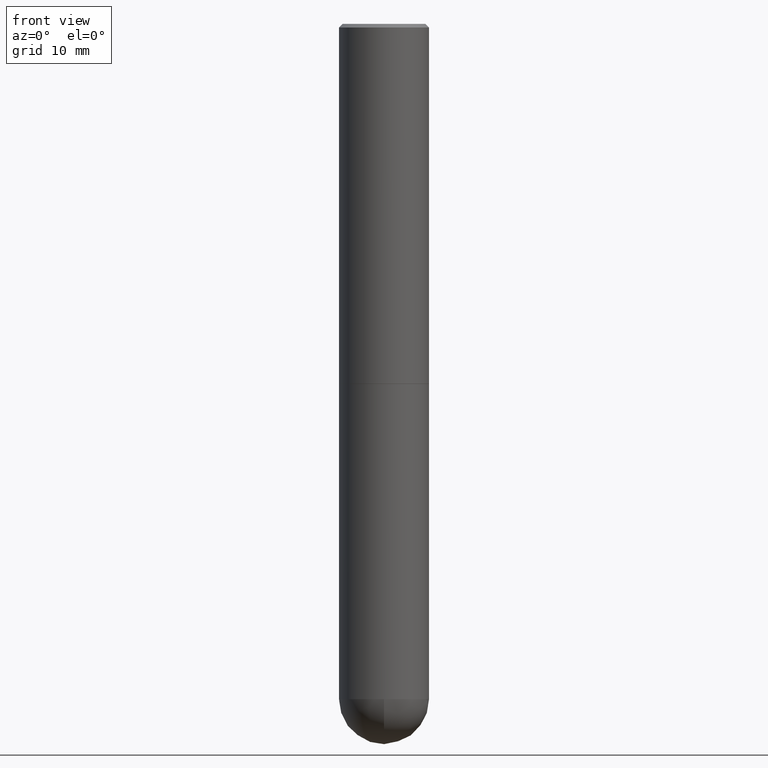
[diagram: clean part render]
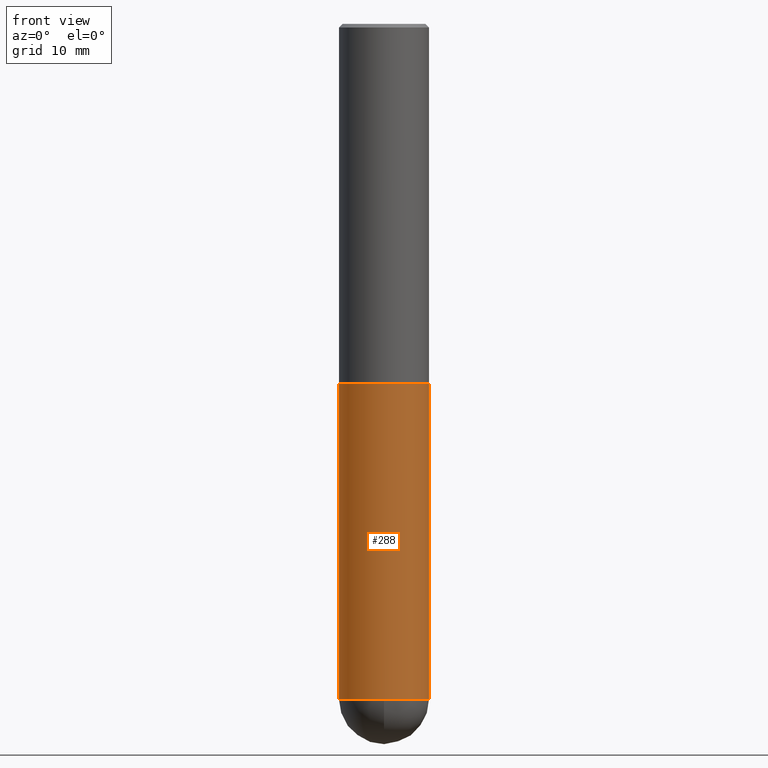
[diagram: same view with one face highlighted and labeled with its STEP entity id]
A machine part, front view. The second image highlights one B-rep face of the part: STEP entity #288.
In plain terms, the highlighted cylindrical surface (partial cylindrical patch) has radius 6.35 mm, axis along (-0, 0, 1).
Its self-contained STEP definition (entity closure, byte-faithful):
#3 = VERTEX_POINT ( 'NONE', #73 ) ;
#4 = DIRECTION ( 'NONE',  ( 1.000000000000000000, -6.982962677686262766E-15, 0.000000000000000000 ) ) ;
#5 = AXIS2_PLACEMENT_3D ( 'NONE', #49, #144, #264 ) ;
#12 = VECTOR ( 'NONE', #84, 39.37007874015748143 ) ;
#31 = CYLINDRICAL_SURFACE ( 'NONE', #5, 0.2500000000000000000 ) ;
#43 = DIRECTION ( 'NONE',  ( -2.445468806185136597E-29, 3.491481338843145583E-15, 1.000000000000000000 ) ) ;
#49 = CARTESIAN_POINT ( 'NONE',  ( 0.000000000000000000, 0.000000000000000000, 0.000000000000000000 ) ) ;
#55 = AXIS2_PLACEMENT_3D ( 'NONE', #140, #43, #4 ) ;
#73 = CARTESIAN_POINT ( 'NONE',  ( -0.2500000000000000000, -8.261652009773794219E-15, -2.000000000000000000 ) ) ;
#79 = VERTEX_POINT ( 'NONE', #164 ) ;
#80 = CARTESIAN_POINT ( 'NONE',  ( 0.2500000000000000000, -8.728703347107857054E-15, -2.000000000000000000 ) ) ;
#84 = DIRECTION ( 'NONE',  ( -2.445468806185136877E-29, 3.491481338843145188E-15, 1.000000000000000000 ) ) ;
#88 = FACE_OUTER_BOUND ( 'NONE', #294, .T. ) ;
#95 = CARTESIAN_POINT ( 'NONE',  ( 4.890937612370273194E-29, -6.982962677686291165E-15, -2.000000000000000000 ) ) ;
#100 = ORIENTED_EDGE ( 'NONE', *, *, #204, .F. ) ;
#102 = EDGE_CURVE ( 'NONE', #213, #352, #244, .T. ) ;
#115 = DIRECTION ( 'NONE',  ( 1.000000000000000000, -6.982962677686262766E-15, 0.000000000000000000 ) ) ;
#119 = DIRECTION ( 'NONE',  ( -2.445468806185136597E-29, 3.491481338843145583E-15, 1.000000000000000000 ) ) ;
#139 = VECTOR ( 'NONE', #314, 39.37007874015748143 ) ;
#140 = CARTESIAN_POINT ( 'NONE',  ( 9.170508023194262238E-29, -1.309305502066179741E-14, -3.750000000000000000 ) ) ;
#144 = DIRECTION ( 'NONE',  ( -2.445468806185136597E-29, 3.491481338843145583E-15, 1.000000000000000000 ) ) ;
#154 = EDGE_CURVE ( 'NONE', #79, #213, #173, .T. ) ;
#156 = CARTESIAN_POINT ( 'NONE',  ( -1.776356839400160732E-15, -0.2500000000000133782, -3.749999999999999112 ) ) ;
#164 = CARTESIAN_POINT ( 'NONE',  ( -0.2500000000000000000, -8.261652009773795797E-15, -3.750000000000000000 ) ) ;
#172 = LINE ( 'NONE', #395, #139 ) ;
#173 = CIRCLE ( 'NONE', #341, 0.2500000000000000000 ) ;
#175 = DIRECTION ( 'NONE',  ( -2.445468806185136597E-29, 3.491481338843145583E-15, 1.000000000000000000 ) ) ;
#182 = AXIS2_PLACEMENT_3D ( 'NONE', #95, #175, #324 ) ;
#192 = ORIENTED_EDGE ( 'NONE', *, *, #362, .T. ) ;
#204 = EDGE_CURVE ( 'NONE', #79, #3, #282, .T. ) ;
#212 = CARTESIAN_POINT ( 'NONE',  ( 9.170508023194262238E-29, -1.309305502066179741E-14, -3.750000000000000000 ) ) ;
#213 = VERTEX_POINT ( 'NONE', #156 ) ;
#218 = CIRCLE ( 'NONE', #182, 0.2500000000000000000 ) ;
#232 = EDGE_CURVE ( 'NONE', #3, #375, #218, .T. ) ;
#244 = CIRCLE ( 'NONE', #55, 0.2500000000000000000 ) ;
#263 = ORIENTED_EDGE ( 'NONE', *, *, #154, .T. ) ;
#264 = DIRECTION ( 'NONE',  ( 1.000000000000000000, -6.982962677686266711E-15, 4.876176775795935793E-29 ) ) ;
#272 = ORIENTED_EDGE ( 'NONE', *, *, #102, .T. ) ;
#282 = LINE ( 'NONE', #369, #12 ) ;
#288 = ADVANCED_FACE ( 'NONE', ( #88 ), #31, .T. ) ;
#294 = EDGE_LOOP ( 'NONE', ( #100, #263, #272, #192, #404 ) ) ;
#314 = DIRECTION ( 'NONE',  ( -2.445468806185136877E-29, 3.491481338843145188E-15, 1.000000000000000000 ) ) ;
#324 = DIRECTION ( 'NONE',  ( 1.000000000000000000, -6.982962677686266711E-15, 0.000000000000000000 ) ) ;
#341 = AXIS2_PLACEMENT_3D ( 'NONE', #212, #119, #115 ) ;
#352 = VERTEX_POINT ( 'NONE', #354 ) ;
#354 = CARTESIAN_POINT ( 'NONE',  ( 0.2500000000000000000, -1.178374951859561294E-14, -3.750000000000000000 ) ) ;
#362 = EDGE_CURVE ( 'NONE', #352, #375, #172, .T. ) ;
#369 = CARTESIAN_POINT ( 'NONE',  ( -0.2500000000000000000, 1.776356839400250465E-15, -1.229733772563726445E-29 ) ) ;
#375 = VERTEX_POINT ( 'NONE', #80 ) ;
#395 = CARTESIAN_POINT ( 'NONE',  ( 0.2500000000000000000, -1.745740669421566678E-15, 1.219044193948983948E-29 ) ) ;
#404 = ORIENTED_EDGE ( 'NONE', *, *, #232, .F. ) ;